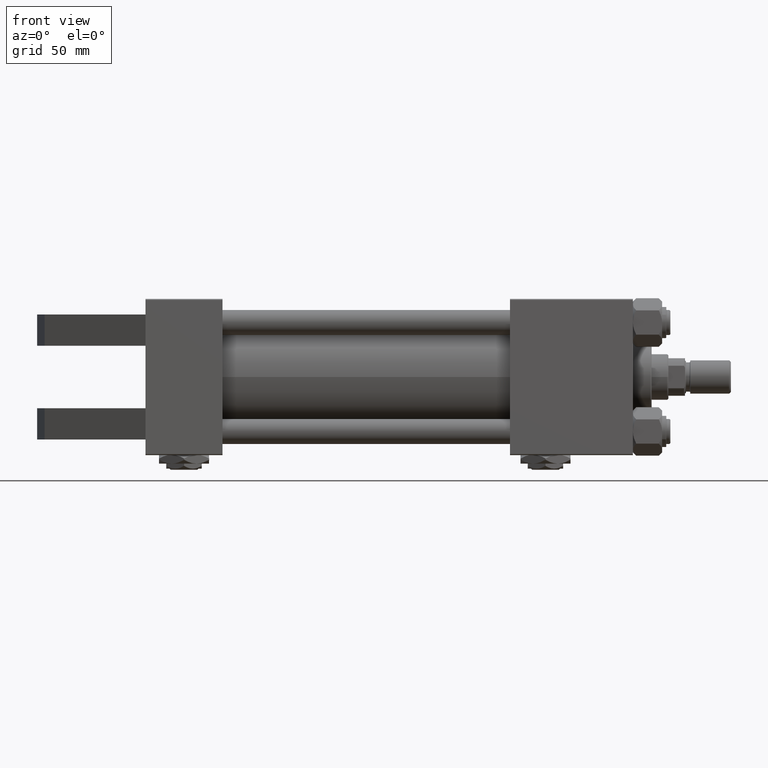
[diagram: clean part render]
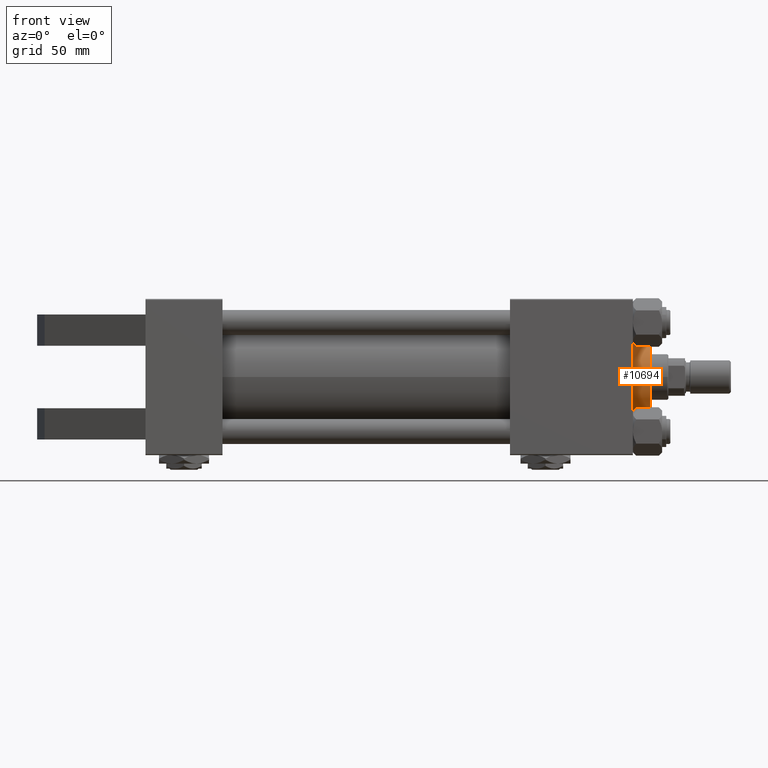
[diagram: same view with one face highlighted and labeled with its STEP entity id]
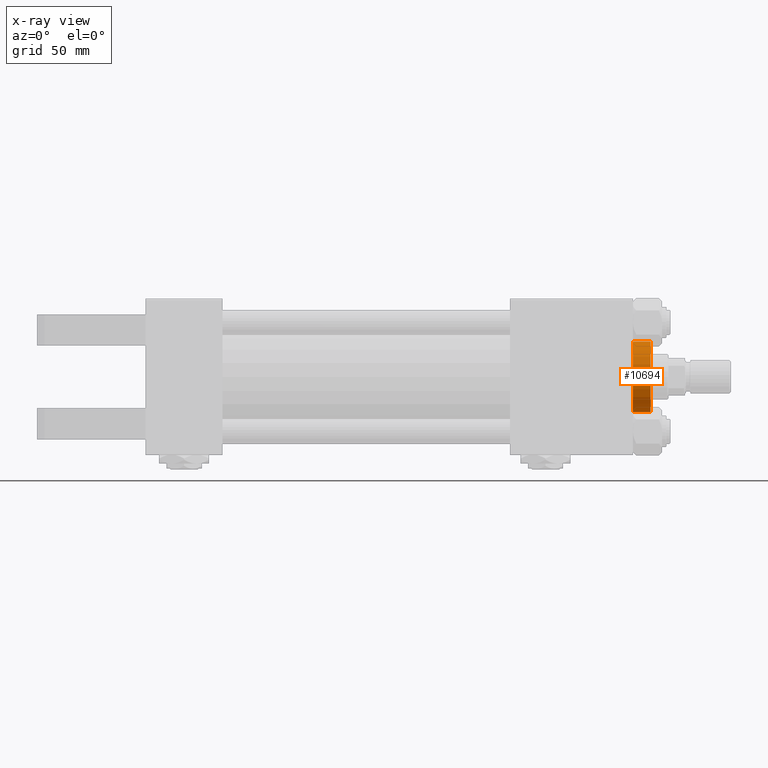
[diagram: x-ray of the same camera — body ghosted, the highlighted face saturated]
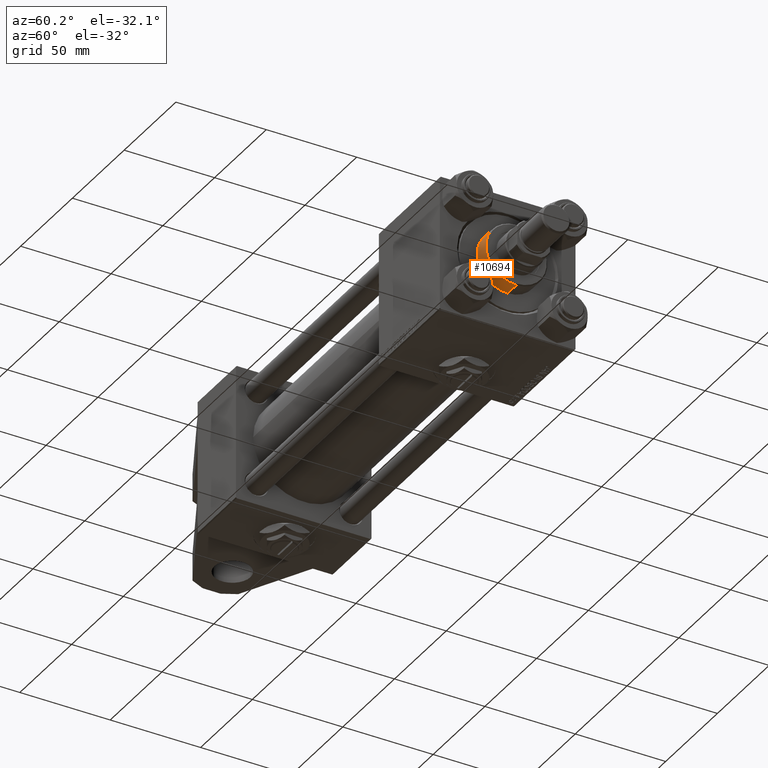
[diagram: same view with one face highlighted and labeled with its STEP entity id]
A machine part, front view. The second image highlights one B-rep face of the part: STEP entity #10694.
The next image is the same camera in x-ray: the body ghosted, the highlighted face saturated — about 0% of this face is hidden behind the body in this view.
A second angle (auxiliary view) of the same face is appended — the face is thin or edge-on in the first view.
In plain terms, the highlighted cylindrical surface (edge-blend (fillet) strip) has radius 17 mm, axis along (-1, 0, 0).
Its self-contained STEP definition (entity closure, byte-faithful):
#1623 = CIRCLE ( 'NONE', #41218, 17.00000000000000000 ) ;
#4902 = ORIENTED_EDGE ( 'NONE', *, *, #40382, .T. ) ;
#4937 = CARTESIAN_POINT ( 'NONE',  ( 17.00000000000000000, 2.081899558550500280E-15, 37.69999999999999574 ) ) ;
#8511 = VERTEX_POINT ( 'NONE', #24051 ) ;
#9441 = LINE ( 'NONE', #4937, #48562 ) ;
#10694 = ADVANCED_FACE ( 'NONE', ( #13867 ), #46041, .T. ) ;
#10716 = EDGE_CURVE ( 'NONE', #8511, #10980, #29405, .T. ) ;
#10980 = VERTEX_POINT ( 'NONE', #13541 ) ;
#13344 = DIRECTION ( 'NONE',  ( -1.000000000000000000, 0.000000000000000000, 0.000000000000000000 ) ) ;
#13541 = CARTESIAN_POINT ( 'NONE',  ( -17.00000000000000000, 0.000000000000000000, 28.69999999999999929 ) ) ;
#13867 = FACE_OUTER_BOUND ( 'NONE', #22433, .T. ) ;
#15400 = VECTOR ( 'NONE', #33918, 1000.000000000000000 ) ;
#16657 = DIRECTION ( 'NONE',  ( 1.000000000000000000, 0.000000000000000000, 0.000000000000000000 ) ) ;
#17176 = CARTESIAN_POINT ( 'NONE',  ( 0.000000000000000000, 0.000000000000000000, 28.69999999999999929 ) ) ;
#17610 = DIRECTION ( 'NONE',  ( -0.000000000000000000, -0.000000000000000000, -1.000000000000000000 ) ) ;
#17840 = DIRECTION ( 'NONE',  ( -0.000000000000000000, -0.000000000000000000, -1.000000000000000000 ) ) ;
#21405 = ORIENTED_EDGE ( 'NONE', *, *, #10716, .T. ) ;
#22433 = EDGE_LOOP ( 'NONE', ( #34004, #4902, #21405, #49751 ) ) ;
#24051 = CARTESIAN_POINT ( 'NONE',  ( -17.00000000000000000, 0.000000000000000000, 37.19999999999999574 ) ) ;
#24675 = CARTESIAN_POINT ( 'NONE',  ( -17.00000000000000000, 0.000000000000000000, 37.69999999999999574 ) ) ;
#25343 = CIRCLE ( 'NONE', #42264, 17.00000000000000000 ) ;
#25774 = EDGE_CURVE ( 'NONE', #36202, #38551, #9441, .T. ) ;
#27969 = CARTESIAN_POINT ( 'NONE',  ( 17.00000000000000000, 2.081899558550500280E-15, 28.69999999999999929 ) ) ;
#29405 = LINE ( 'NONE', #24675, #15400 ) ;
#29684 = AXIS2_PLACEMENT_3D ( 'NONE', #49223, #17840, #13344 ) ;
#32455 = DIRECTION ( 'NONE',  ( 1.000000000000000000, 0.000000000000000000, 0.000000000000000000 ) ) ;
#33918 = DIRECTION ( 'NONE',  ( -0.000000000000000000, -0.000000000000000000, -1.000000000000000000 ) ) ;
#34004 = ORIENTED_EDGE ( 'NONE', *, *, #25774, .F. ) ;
#36202 = VERTEX_POINT ( 'NONE', #45248 ) ;
#38551 = VERTEX_POINT ( 'NONE', #27969 ) ;
#40382 = EDGE_CURVE ( 'NONE', #36202, #8511, #25343, .T. ) ;
#41218 = AXIS2_PLACEMENT_3D ( 'NONE', #17176, #45107, #32455 ) ;
#41693 = DIRECTION ( 'NONE',  ( 0.000000000000000000, 0.000000000000000000, -1.000000000000000000 ) ) ;
#42264 = AXIS2_PLACEMENT_3D ( 'NONE', #49096, #41693, #16657 ) ;
#45107 = DIRECTION ( 'NONE',  ( 0.000000000000000000, 0.000000000000000000, 1.000000000000000000 ) ) ;
#45248 = CARTESIAN_POINT ( 'NONE',  ( 17.00000000000000000, 2.081899558550500280E-15, 37.19999999999999574 ) ) ;
#46041 = CYLINDRICAL_SURFACE ( 'NONE', #29684, 17.00000000000000000 ) ;
#48562 = VECTOR ( 'NONE', #17610, 1000.000000000000000 ) ;
#48710 = EDGE_CURVE ( 'NONE', #10980, #38551, #1623, .T. ) ;
#49096 = CARTESIAN_POINT ( 'NONE',  ( 0.000000000000000000, 0.000000000000000000, 37.19999999999999574 ) ) ;
#49223 = CARTESIAN_POINT ( 'NONE',  ( 0.000000000000000000, 0.000000000000000000, 37.69999999999999574 ) ) ;
#49751 = ORIENTED_EDGE ( 'NONE', *, *, #48710, .T. ) ;